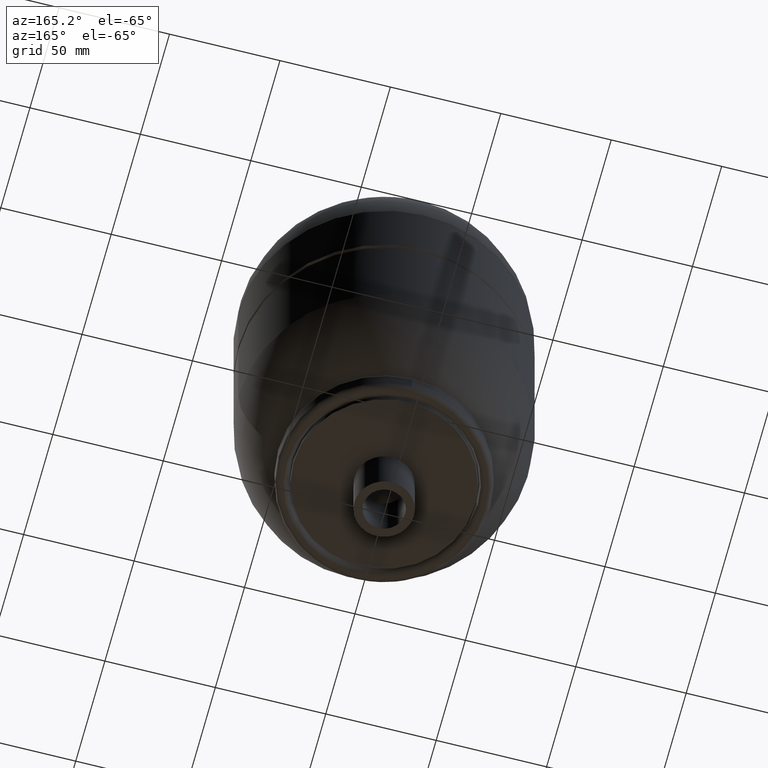
[diagram: clean part render]
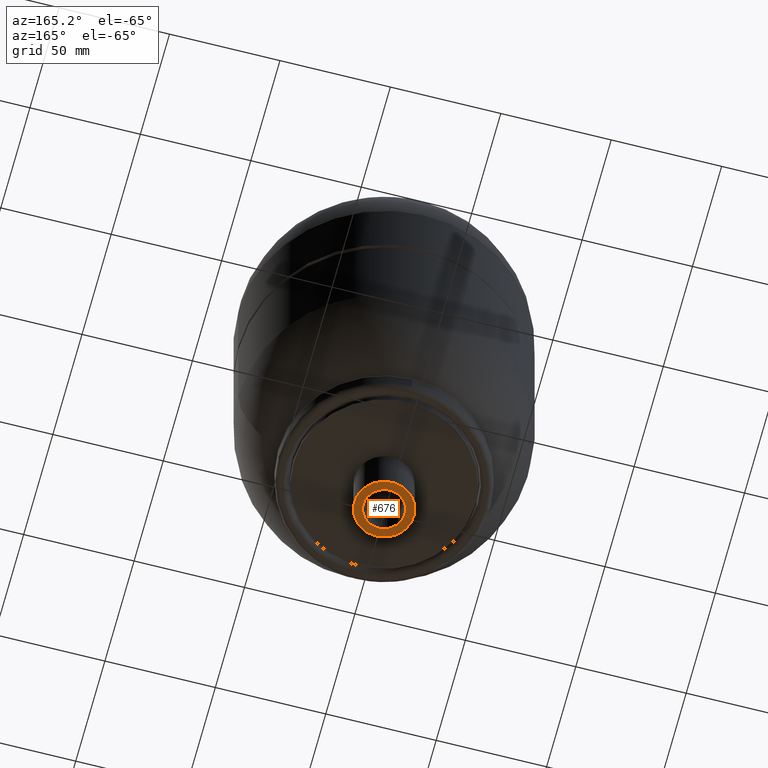
[diagram: same view with one face highlighted and labeled with its STEP entity id]
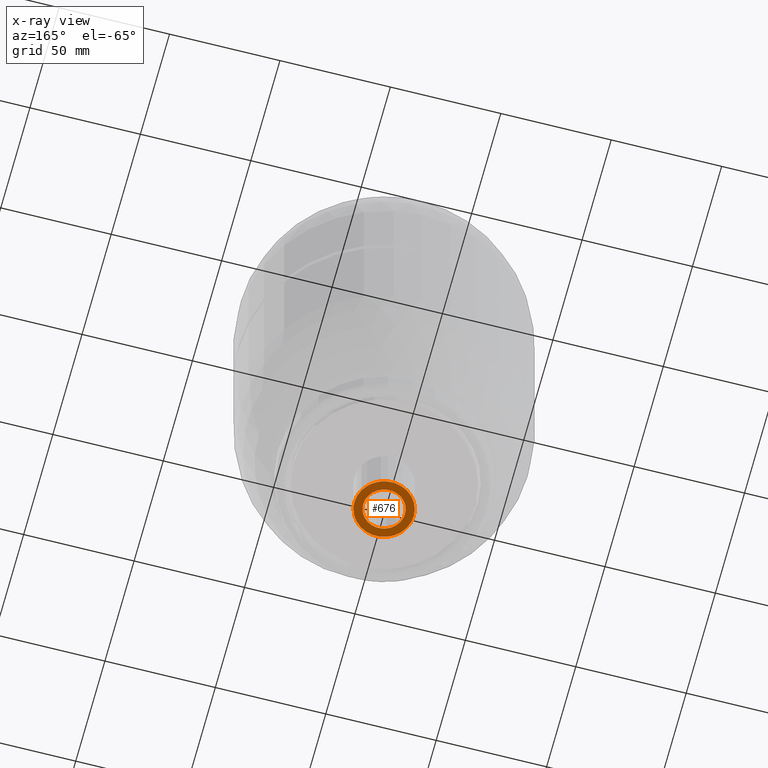
[diagram: x-ray of the same camera — body ghosted, the highlighted face saturated]
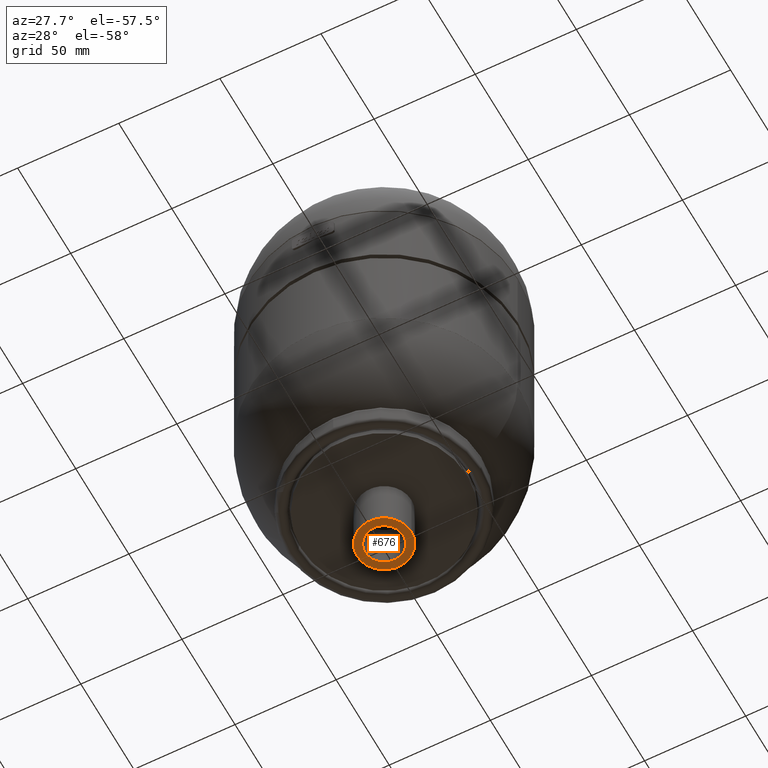
[diagram: same view with one face highlighted and labeled with its STEP entity id]
A machine part, auxiliary view. The second image highlights one B-rep face of the part: STEP entity #676.
The next image is the same camera in x-ray: the body ghosted, the highlighted face saturated — about 0% of this face is hidden behind the body in this view.
A second angle (auxiliary view) of the same face is appended — the face is thin or edge-on in the first view.
In plain terms, the highlighted planar face has unit normal (0, 0, 1).
Its self-contained STEP definition (entity closure, byte-faithful):
#278=CARTESIAN_POINT('',(13.449999999999999,0.0,0.0));
#279=VERTEX_POINT('',#278);
#295=CARTESIAN_POINT('',(-13.449999999999999,-1.647096E-015,0.0));
#296=VERTEX_POINT('',#295);
#303=CARTESIAN_POINT('',(0.0,0.0,0.0));
#304=DIRECTION('',(0.0,0.0,1.0));
#305=DIRECTION('',(1.0,0.0,0.0));
#306=AXIS2_PLACEMENT_3D('',#303,#304,#305);
#307=CIRCLE('',#306,13.449999999999999);
#308=EDGE_CURVE('',#296,#279,#307,.T.);
#318=CARTESIAN_POINT('',(9.449999999999999,0.0,0.0));
#319=VERTEX_POINT('',#318);
#328=CARTESIAN_POINT('',(-9.449999999999999,-1.157253E-015,0.0));
#329=VERTEX_POINT('',#328);
#330=CARTESIAN_POINT('',(0.0,0.0,0.0));
#331=DIRECTION('',(0.0,0.0,1.0));
#332=DIRECTION('',(1.0,0.0,0.0));
#333=AXIS2_PLACEMENT_3D('',#330,#331,#332);
#334=CIRCLE('',#333,9.449999999999999);
#335=EDGE_CURVE('',#329,#319,#334,.T.);
#635=CARTESIAN_POINT('',(0.0,0.0,0.0));
#636=DIRECTION('',(0.0,0.0,1.0));
#637=DIRECTION('',(1.0,0.0,0.0));
#638=AXIS2_PLACEMENT_3D('',#635,#636,#637);
#639=CIRCLE('',#638,9.449999999999999);
#640=EDGE_CURVE('',#319,#329,#639,.T.);
#651=CARTESIAN_POINT('',(0.0,0.0,0.0));
#652=DIRECTION('',(0.0,0.0,1.0));
#653=DIRECTION('',(1.0,0.0,0.0));
#654=AXIS2_PLACEMENT_3D('',#651,#652,#653);
#655=CIRCLE('',#654,13.449999999999999);
#656=EDGE_CURVE('',#279,#296,#655,.T.);
#663=CARTESIAN_POINT('',(0.0,0.0,0.0));
#664=DIRECTION('',(0.0,0.0,1.0));
#665=DIRECTION('',(1.0,0.0,0.0));
#666=AXIS2_PLACEMENT_3D('',#663,#664,#665);
#667=PLANE('',#666);
#668=ORIENTED_EDGE('',*,*,#656,.F.);
#669=ORIENTED_EDGE('',*,*,#308,.F.);
#670=EDGE_LOOP('',(#668,#669));
#671=FACE_OUTER_BOUND('',#670,.T.);
#672=ORIENTED_EDGE('',*,*,#640,.T.);
#673=ORIENTED_EDGE('',*,*,#335,.T.);
#674=EDGE_LOOP('',(#672,#673));
#675=FACE_BOUND('',#674,.T.);
#676=ADVANCED_FACE('',(#671,#675),#667,.F.);